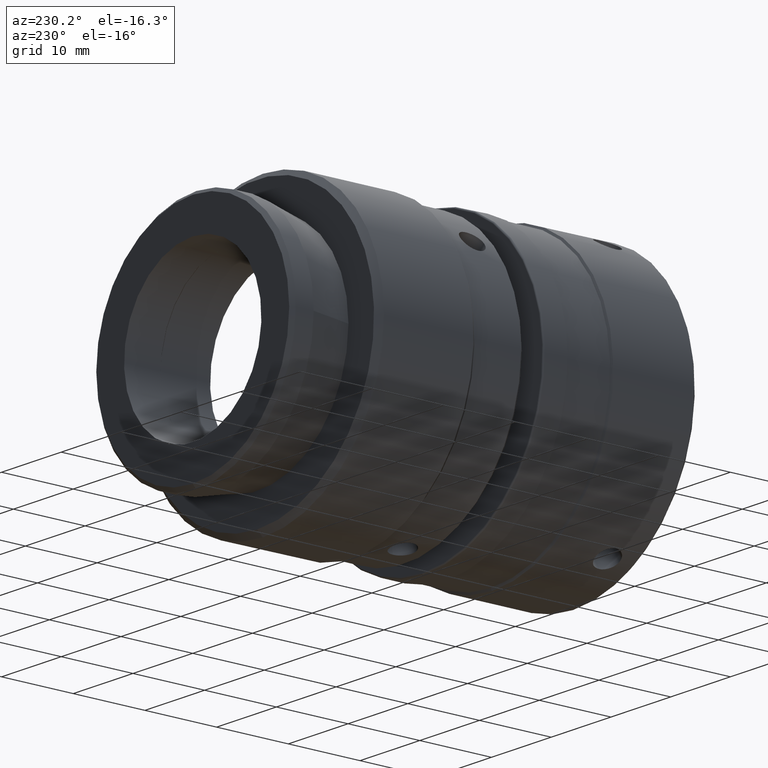
[diagram: clean part render]
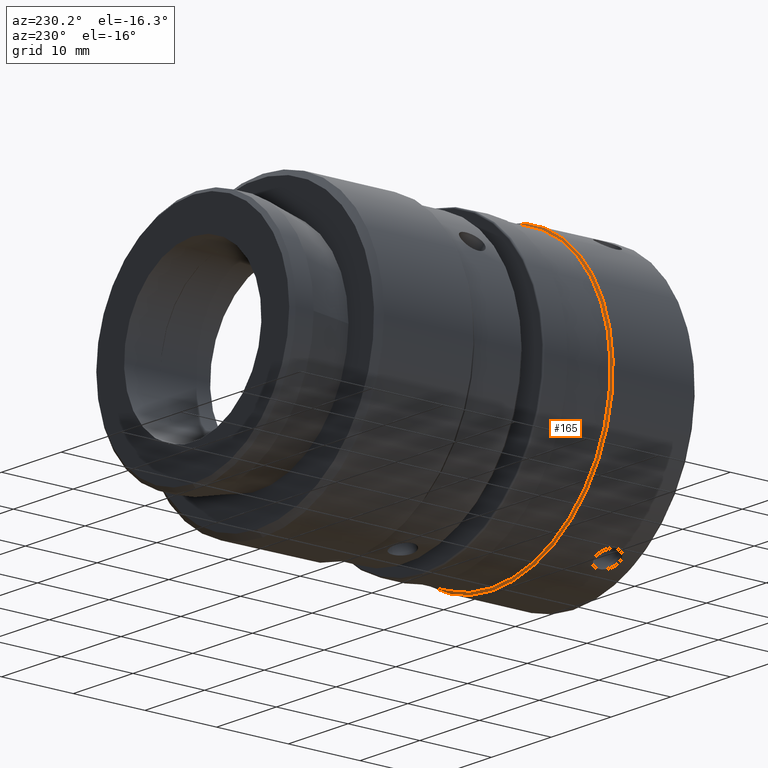
[diagram: same view with one face highlighted and labeled with its STEP entity id]
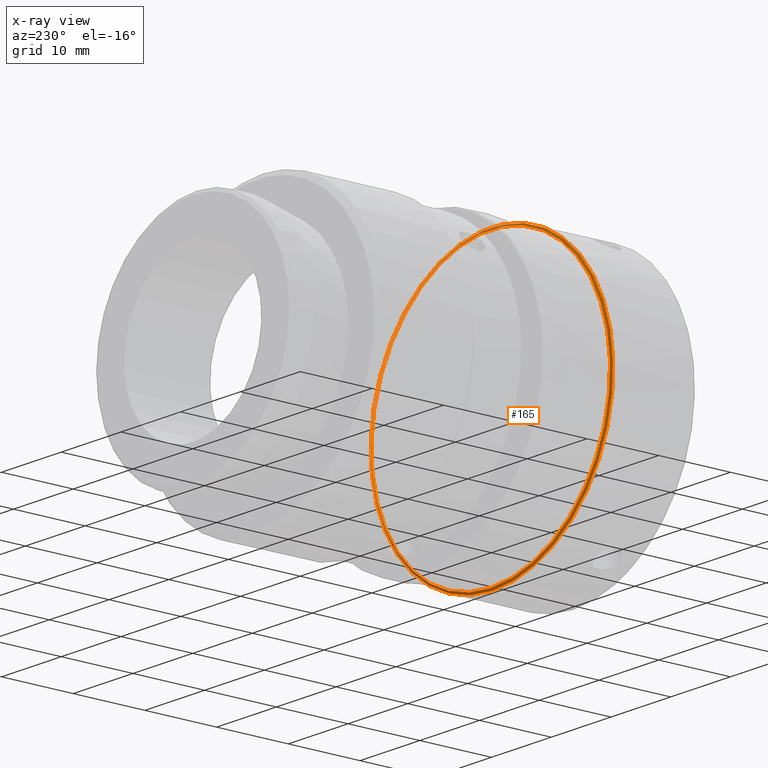
[diagram: x-ray of the same camera — body ghosted, the highlighted face saturated]
A machine part, auxiliary view. The second image highlights one B-rep face of the part: STEP entity #165.
The next image is the same camera in x-ray: the body ghosted, the highlighted face saturated — about 21% of this face is hidden behind the body in this view.
In plain terms, the highlighted conical surface has half-angle 60 deg.
Its self-contained STEP definition (entity closure, byte-faithful):
#52 = CARTESIAN_POINT ( 'NONE',  ( 14.30252365930601144, -11.98752377067730990, -6.938893903907228378E-15 ) ) ;
#165 = ADVANCED_FACE ( 'NONE', ( #1052, #1566 ), #2101, .T. ) ;
#241 = DIRECTION ( 'NONE',  ( 0.000000000000000000, -1.000000000000000000, 0.000000000000000000 ) ) ;
#420 = AXIS2_PLACEMENT_3D ( 'NONE', #1503, #241, #453 ) ;
#453 = DIRECTION ( 'NONE',  ( 0.000000000000000000, 0.000000000000000000, -1.000000000000000000 ) ) ;
#495 = CARTESIAN_POINT ( 'NONE',  ( 14.30252365930601144, -11.98752377067730990, -20.30000000000019256 ) ) ;
#508 = AXIS2_PLACEMENT_3D ( 'NONE', #537, #703, #2276 ) ;
#519 = CARTESIAN_POINT ( 'NONE',  ( 14.30252365930601144, -11.81431868997687928, -20.00000000000000355 ) ) ;
#537 = CARTESIAN_POINT ( 'NONE',  ( 14.30252365930601144, -11.98752377067730990, -6.938893903907228378E-15 ) ) ;
#570 = ORIENTED_EDGE ( 'NONE', *, *, #1906, .T. ) ;
#674 = ORIENTED_EDGE ( 'NONE', *, *, #1132, .F. ) ;
#703 = DIRECTION ( 'NONE',  ( 0.000000000000000000, -1.000000000000000000, 0.000000000000000000 ) ) ;
#1052 = FACE_OUTER_BOUND ( 'NONE', #2130, .T. ) ;
#1057 = CIRCLE ( 'NONE', #1954, 20.30000000000018545 ) ;
#1132 = EDGE_CURVE ( 'NONE', #2254, #2254, #1057, .T. ) ;
#1264 = EDGE_LOOP ( 'NONE', ( #570 ) ) ;
#1436 = DIRECTION ( 'NONE',  ( -0.000000000000000000, -1.000000000000000000, -0.000000000000000000 ) ) ;
#1503 = CARTESIAN_POINT ( 'NONE',  ( 14.30252365930601144, -11.81431868997687928, -6.938893903907228378E-15 ) ) ;
#1566 = FACE_BOUND ( 'NONE', #1264, .T. ) ;
#1571 = VERTEX_POINT ( 'NONE', #519 ) ;
#1828 = DIRECTION ( 'NONE',  ( 0.000000000000000000, 0.000000000000000000, -1.000000000000000000 ) ) ;
#1906 = EDGE_CURVE ( 'NONE', #1571, #1571, #2233, .T. ) ;
#1954 = AXIS2_PLACEMENT_3D ( 'NONE', #52, #1436, #1828 ) ;
#2101 = CONICAL_SURFACE ( 'NONE', #508, 20.30000000000018545, 1.047197551338010735 ) ;
#2130 = EDGE_LOOP ( 'NONE', ( #674 ) ) ;
#2233 = CIRCLE ( 'NONE', #420, 19.99999999999999645 ) ;
#2254 = VERTEX_POINT ( 'NONE', #495 ) ;
#2276 = DIRECTION ( 'NONE',  ( 0.000000000000000000, 0.000000000000000000, -1.000000000000000000 ) ) ;